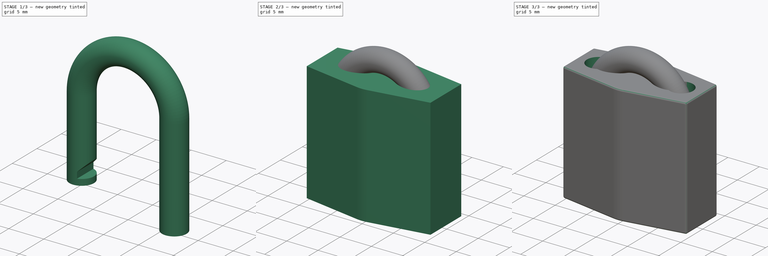
[diagram: build sequence overview — one tinted view per stage of 3, left to right]
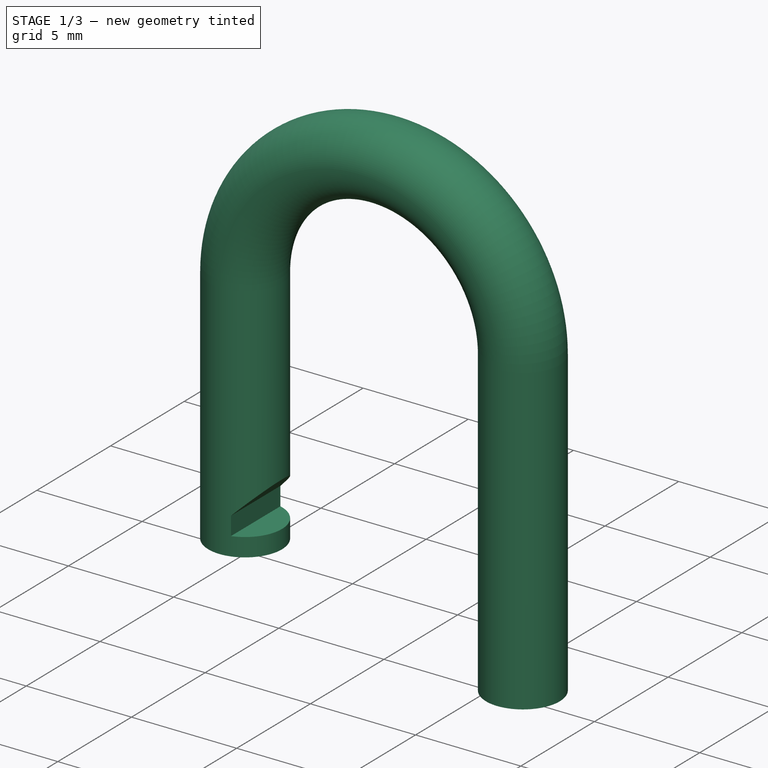
[diagram: stage 1 of 3 — iso view after this stage's code; geometry added in this stage tinted green]
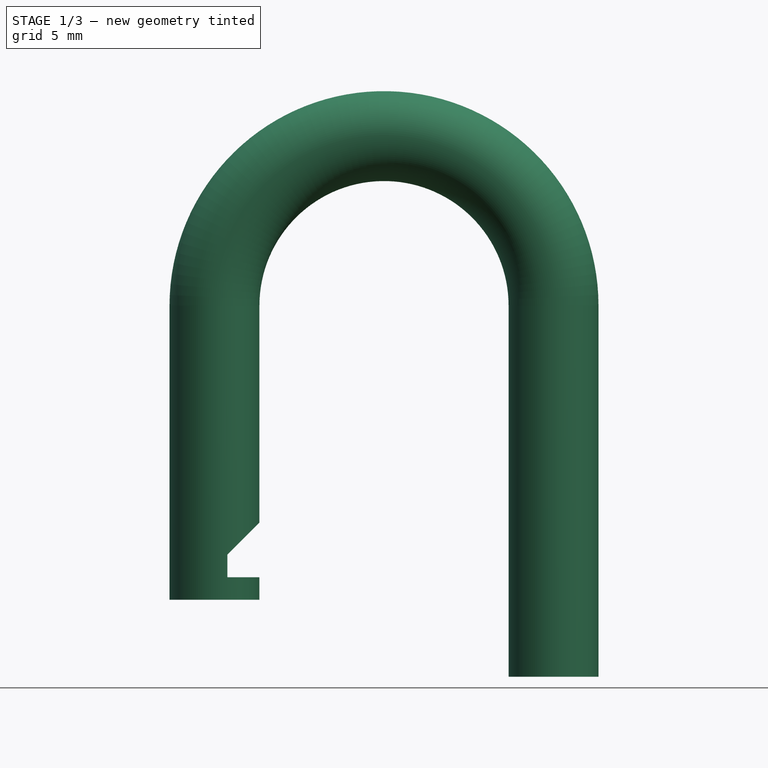
[diagram: stage 1 of 3 — front view after this stage's code; geometry added in this stage tinted green]
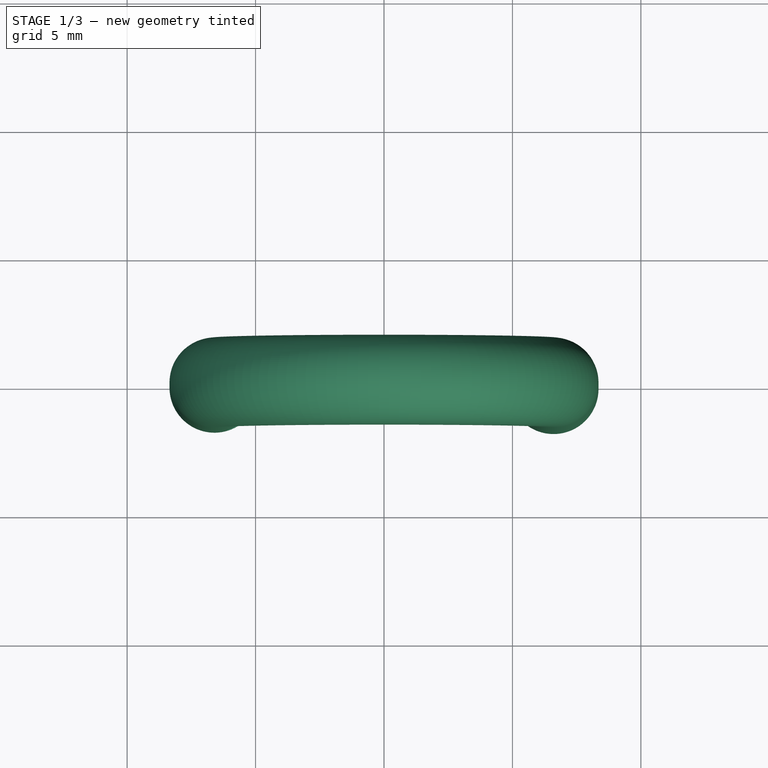
[diagram: stage 1 of 3 — top view after this stage's code; geometry added in this stage tinted green]
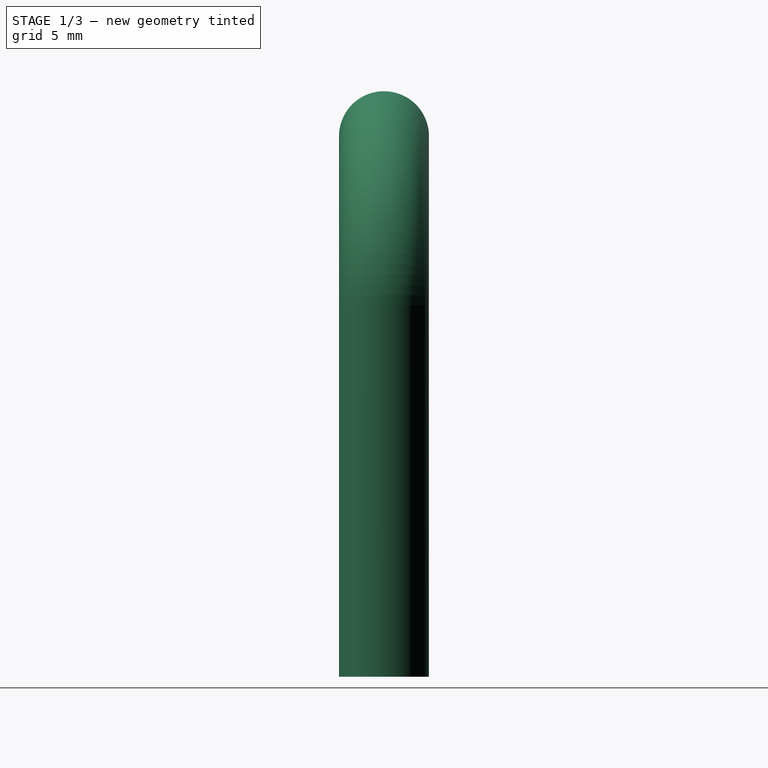
[diagram: stage 1 of 3 — right view after this stage's code; geometry added in this stage tinted green]
FCSTD DOCUMENT  (FreeCAD 0.19R24267 +99 (Git))
Label: _Padlock_new
License: Creative Commons Attribution
LicenseURL: http://creativecommons.org/licenses/by/4.0/
objects: Sketcher::SketchObject×5, PartDesign::Pocket×2, PartDesign::Body×2, App::FeaturePython×1, PartDesign::Pad×1, PartDesign::Fillet×1, PartDesign::AdditivePipe×1, PartDesign::Chamfer×1
note: 19 computed .brp shape members not serialized (recipe doc carries the construction recipe); baked Part::Feature solids carry a one-line shape summary decoded from their .brp

FEATURE [PartDesign::Body] Body
  Group = -> [Sketch,Pad,Sketch001,Pocket,Fillet]
  Origin = -> Origin
  Tip = -> Fillet
FEATURE [Sketcher::SketchObject] Sketch002
  FullyConstrained = true
  MapMode = 5
  Placement = pos=(0,0,0) rot=(1,0,0;1.5708rad)
  Support = -> [XZ_Plane001]
  expr: Constraints[13] = <<params>>.shakle_hight_open + <<params>>.shakle_diameter / 2
  expr: Constraints[5] = <<params>>.shakle_inner_width + <<params>>.shakle_diameter
  sketch-geometry (5):
    g0: LineSegment StartX=6.6 StartY=0 StartZ=0 EndX=6.6 EndY=14.45 EndZ=0
    g1: ArcOfCircle CenterX=0 CenterY=14.45 CenterZ=0 NormalX=0 NormalY=0 NormalZ=1 AngleXU=0 Radius=6.6 StartAngle=0 EndAngle=3.14159
    g2: LineSegment StartX=-6.6 StartY=14.45 StartZ=0 EndX=-6.6 EndY=3 EndZ=0
    g3: LineSegment StartX=6.6 StartY=2 StartZ=0 EndX=-6.6 EndY=2 EndZ=0
    g4: GeomPoint X=0 Y=21.05 Z=0
  constraints (15):
    c: Vertical(g0)
    c: Tangent(g0,g1) = -1.5708
    c: Tangent(g1,g2) = -1.5708
    c: Vertical(g2)
    c: PointOnObject(g1,g-2)
    c: DistanceX(g2,g0) = 13.2
    c: PointOnObject(g0,g-1)
    c: PointOnObject(g3,g0)
    c: Horizontal(g3)
    c: PointOnObject(g3,g2)
    c: DistanceY(g0,g3) = 2  'overlap'
    c: PointOnObject(g4,g1)
    c: PointOnObject(g4,g-2)
    c: DistanceY(g3,g4) = 19.05
    c: DistanceY(g3,g2) = 1
FEATURE [Sketcher::SketchObject] Sketch003
  ExternalGeometry = -> [Sketch002]
  FullyConstrained = true
  MapMode = 5
  Support = -> [XY_Plane001]
  expr: Constraints[1] = <<params>>.shakle_diameter
  sketch-geometry (1):
    g0: Circle CenterX=6.6 CenterY=0 CenterZ=0 NormalX=0 NormalY=0 NormalZ=1 AngleXU=0 Radius=1.75
  constraints (2):
    c: Coincident(g0,g-3)
    c: Diameter(g0) = 3.5
FEATURE [PartDesign::AdditivePipe] AdditivePipe
  AuxilleryCurvelinear = true
  AuxillerySpineTangent = false
  Binormal = (0,0,0)
  Mode = 0
  Profile = -> Sketch003
  Spine = -> Sketch002
  SpineTangent = false
  Transformation = 0
  Transition = 0
FEATURE [Sketcher::SketchObject] Sketch004
  ExternalGeometry = -> [Sketch002]
  FullyConstrained = true
  MapMode = 5
  Placement = pos=(0,0,0) rot=(1,0,0;1.5708rad)
  Support = -> [XZ_Plane001]
  expr: Constraints[11] = <<params>>.shakle_diameter
  expr: Constraints[10] = <<params>>.shakle_diameter / 4
  expr: Constraints[8] = <<params>>.shakle_diameter / 4
  expr: Constraints[7] = (<<params>>.shakle_inner_width + <<params>>.shakle_diameter) / 2 - <<params>>.shakle_diameter / 7
  sketch-geometry (4):
    g0: LineSegment StartX=-2.6 StartY=8.25 StartZ=0 EndX=-6.1 EndY=4.75 EndZ=0
    g1: LineSegment StartX=-6.1 StartY=4.75 StartZ=0 EndX=-6.1 EndY=3.875 EndZ=0
    g2: LineSegment StartX=-6.1 StartY=3.875 StartZ=0 EndX=-2.6 EndY=3.875 EndZ=0
    g3: LineSegment StartX=-2.6 StartY=3.875 StartZ=0 EndX=-2.6 EndY=8.25 EndZ=0
  constraints (12):
    c: Coincident(g0,g1)
    c: Vertical(g1)
    c: Coincident(g1,g2)
    c: Coincident(g2,g3)
    c: Vertical(g3)
    c: Coincident(g0,g3)
    c: Horizontal(g2)
    c: DistanceX(g1,g-1) = 6.1
    c: DistanceY(g1,g1) = 0.875
    c: Angle(g1,g0) = 2.35619
    c: DistanceY(g-3,g1) = 0.875
    c: DistanceX(g2,g2) = 3.5
FEATURE [PartDesign::Pocket] Pocket001
  BaseFeature = -> AdditivePipe
  Length = 5
  Length2 = 100
  Midplane = true
  Profile = -> Sketch004
  Type = 1
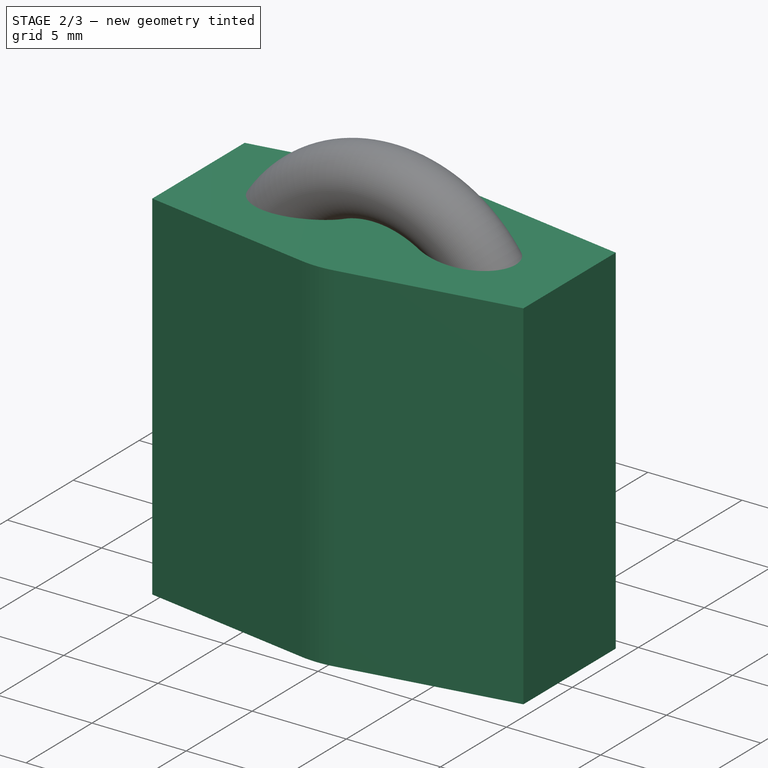
[diagram: stage 2 of 3 — iso view after this stage's code; geometry added in this stage tinted green]
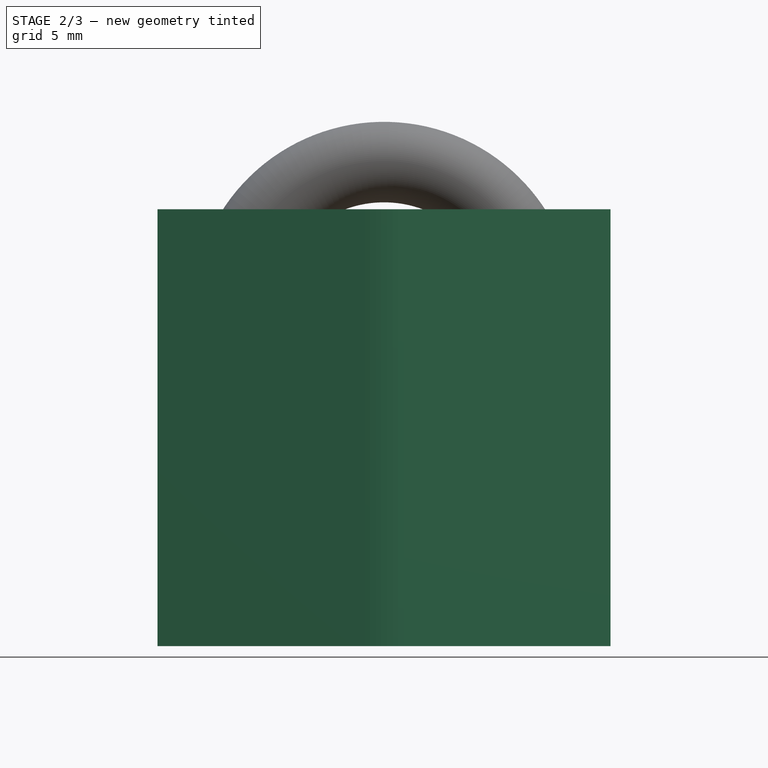
[diagram: stage 2 of 3 — front view after this stage's code; geometry added in this stage tinted green]
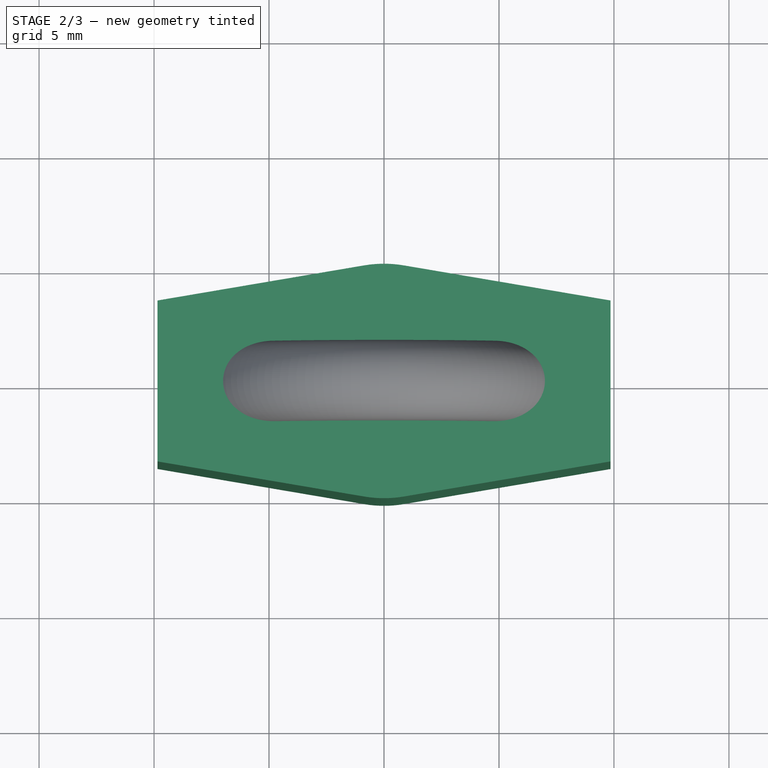
[diagram: stage 2 of 3 — top view after this stage's code; geometry added in this stage tinted green]
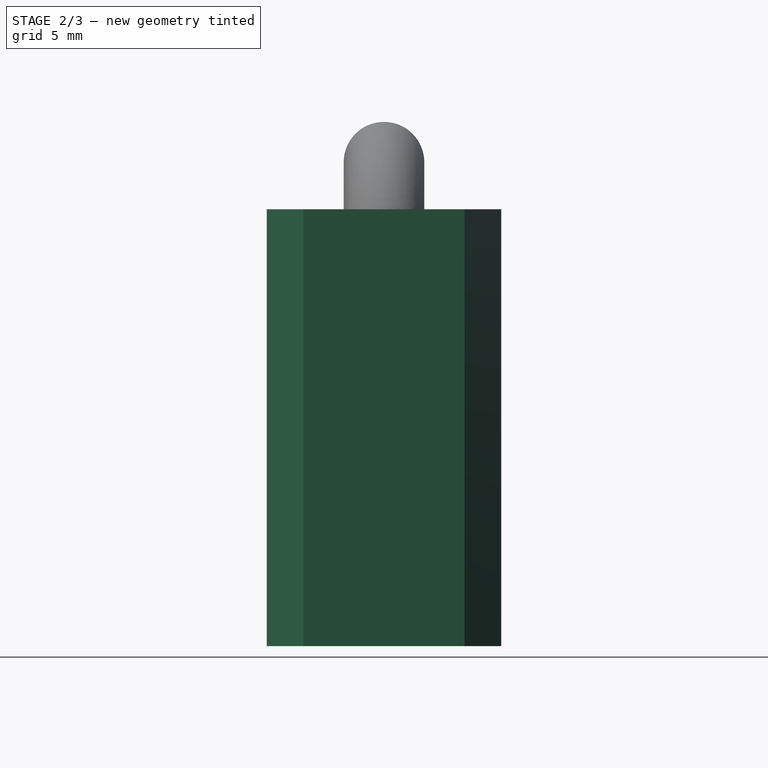
[diagram: stage 2 of 3 — right view after this stage's code; geometry added in this stage tinted green]
FEATURE [App::FeaturePython] PropertyBag  label="params"  # WARN: FeaturePython — macro-defined, semantics opaque (R4)
  CustomPropertyGroups = params | state
  body_depth_center = 10.2
  body_depth_outer = 7
  body_hight = 19
  body_width = 19.7
  shakle_diameter = 3.5
  shakle_hight_closed = 11.4
  shakle_hight_open = 17.3
  shakle_inner_width = 9.7
  state = 0
FEATURE [Sketcher::SketchObject] Sketch
  FullyConstrained = true
  MapMode = 5
  Support = -> [XY_Plane]
  expr: Constraints[20] = <<params>>.body_width
  expr: Constraints[15] = <<params>>.body_depth_outer
  expr: Constraints[11] = <<params>>.body_depth_center
  sketch-geometry (8):
    g0: ArcOfCircle CenterX=0 CenterY=0 CenterZ=0 NormalX=0 NormalY=0 NormalZ=1 AngleXU=0 Radius=5.1 StartAngle=1.40255 EndAngle=1.73904
    g1: ArcOfCircle CenterX=0 CenterY=0 CenterZ=0 NormalX=0 NormalY=0 NormalZ=1 AngleXU=0 Radius=5.1 StartAngle=4.54415 EndAngle=4.88063
    g2: LineSegment StartX=-9.85 StartY=3.5 StartZ=0 EndX=-9.85 EndY=-3.5 EndZ=0
    g3: LineSegment StartX=9.85 StartY=3.5 StartZ=0 EndX=9.85 EndY=-3.5 EndZ=0
    g4: LineSegment StartX=-9.85 StartY=3.5 StartZ=0 EndX=-0.854008 EndY=5.02799 EndZ=0
    g5: LineSegment StartX=0.854008 StartY=5.02799 StartZ=0 EndX=9.85 EndY=3.5 EndZ=0
    g6: LineSegment StartX=0.853998 StartY=-5.02799 StartZ=0 EndX=9.85 EndY=-3.5 EndZ=0
    g7: LineSegment StartX=-0.853998 StartY=-5.02799 StartZ=0 EndX=-9.85 EndY=-3.5 EndZ=0
  constraints (21):
    c: Coincident(g0,g-1)
    c: Coincident(g1,g0)
    c: Coincident(g4,g2)
    c: Coincident(g4,g0)
    c: Coincident(g5,g0)
    c: Coincident(g5,g3)
    c: Coincident(g6,g1)
    c: Coincident(g6,g3)
    c: Coincident(g7,g1)
    c: Coincident(g7,g2)
    c: Equal(g1,g0)
    c: Diameter(g0) = 10.2
    c: Symmetric(g2,g3,g-2)
    c: Symmetric(g2,g2,g-1)
    c: Symmetric(g3,g3,g-1)
    c: DistanceY(g2,g2) = 7
    c: Tangent(g4,g0)
    c: Tangent(g0,g5)
    c: Tangent(g6,g1)
    c: Tangent(g1,g7)
    c: DistanceX(g2,g3) = 19.7
FEATURE [PartDesign::Pad] Pad
  Direction = (1,1,1)
  Length = 19
  Length2 = 100
  Profile = -> Sketch
  Type = 0
  expr: Length = <<params>>.body_hight
FEATURE [PartDesign::Chamfer] Chamfer
  Angle = 45
  Base = -> Pocket001 [Edge7]
  BaseFeature = -> Pocket001
  ChamferType = 0
  FlipDirection = false
  Size = 0.35
  Size2 = 1
  SupportTransform = false
  expr: Size = <<params>>.shakle_diameter / 10
FEATURE [PartDesign::Body] Body001  label="Shakle"
  Group = -> [Sketch002,Sketch003,AdditivePipe,Sketch004,Pocket001,Chamfer]
  Origin = -> Origin001
  Placement = pos=(0,0,17) rot=(0,0,1;0rad)
  Tip = -> Chamfer
  expr: .Placement.Base.z = <<params>>.state == <<open>> ? <<params>>.body_hight - Sketch002.Constraints.overlap : <<params>>.body_hight - Sketch002.Constraints.overlap - (<<params>>.shakle_hight_open - <<params>>.shakle_hight_closed)
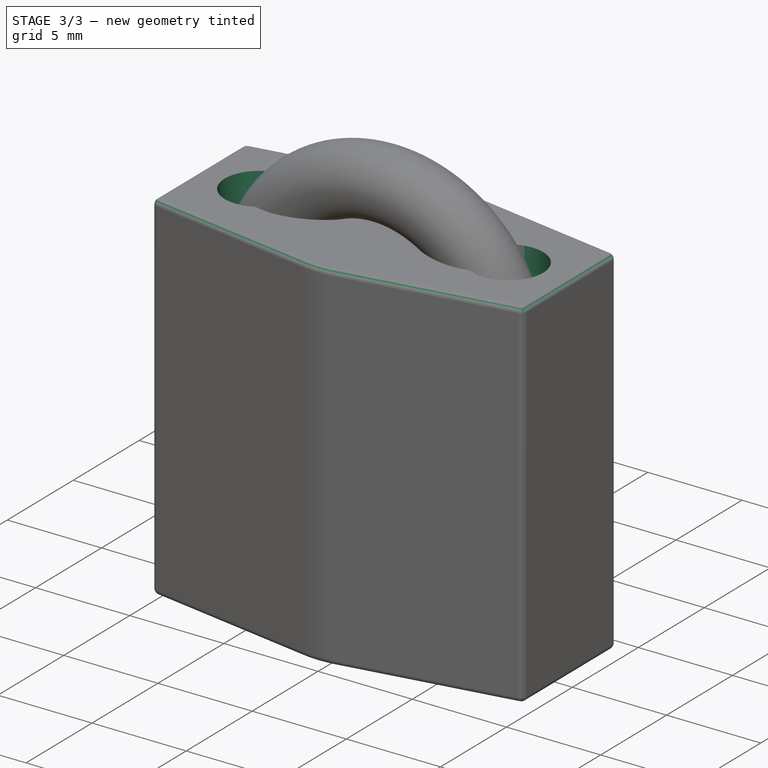
[diagram: stage 3 of 3 — iso view after this stage's code; geometry added in this stage tinted green]
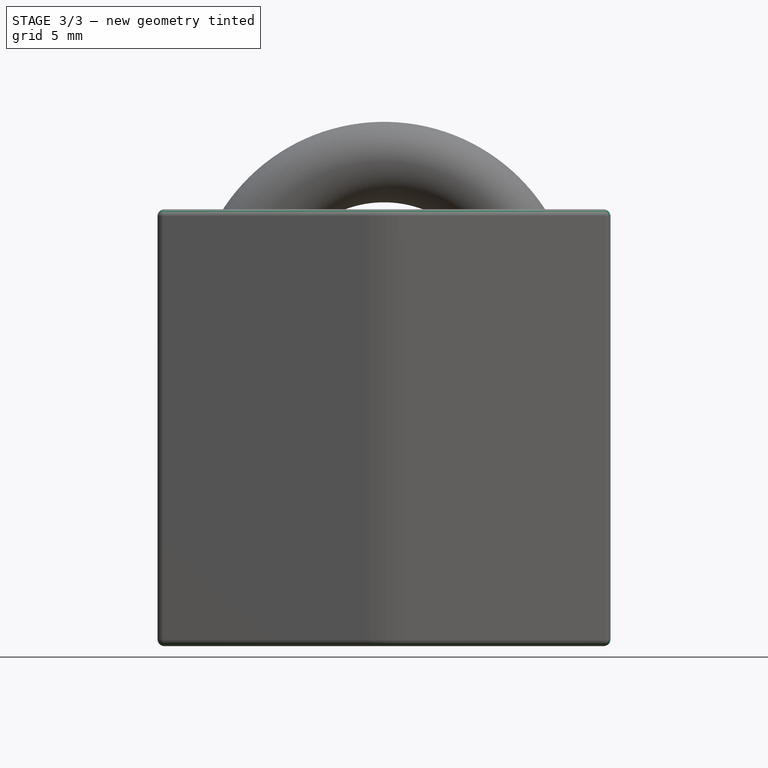
[diagram: stage 3 of 3 — front view after this stage's code; geometry added in this stage tinted green]
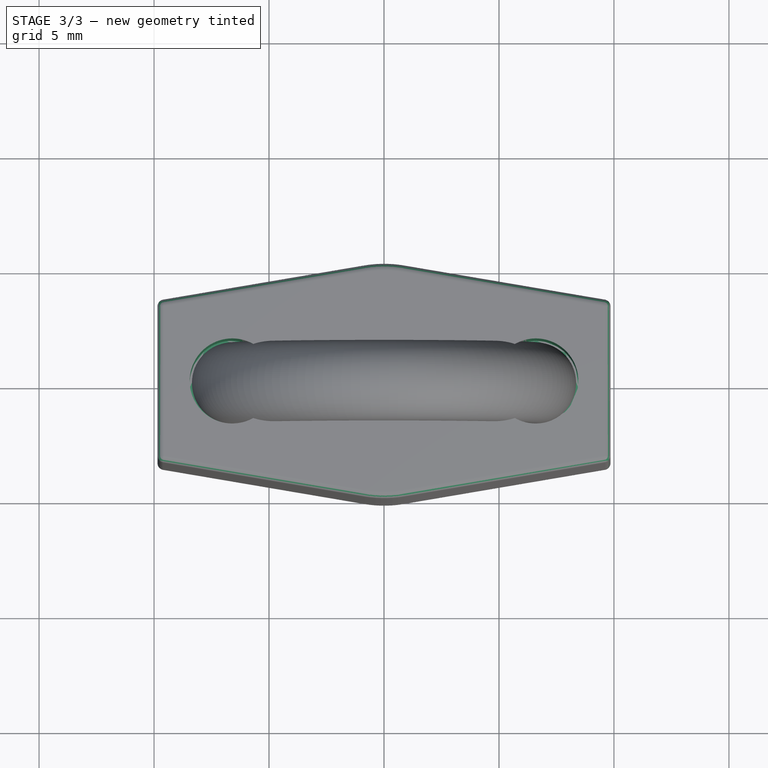
[diagram: stage 3 of 3 — top view after this stage's code; geometry added in this stage tinted green]
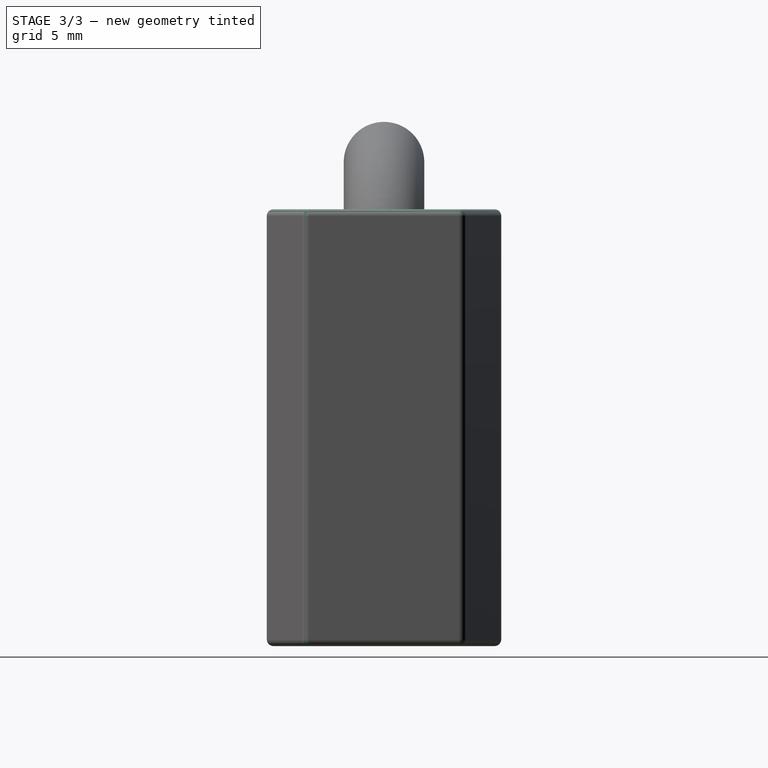
[diagram: stage 3 of 3 — right view after this stage's code; geometry added in this stage tinted green]
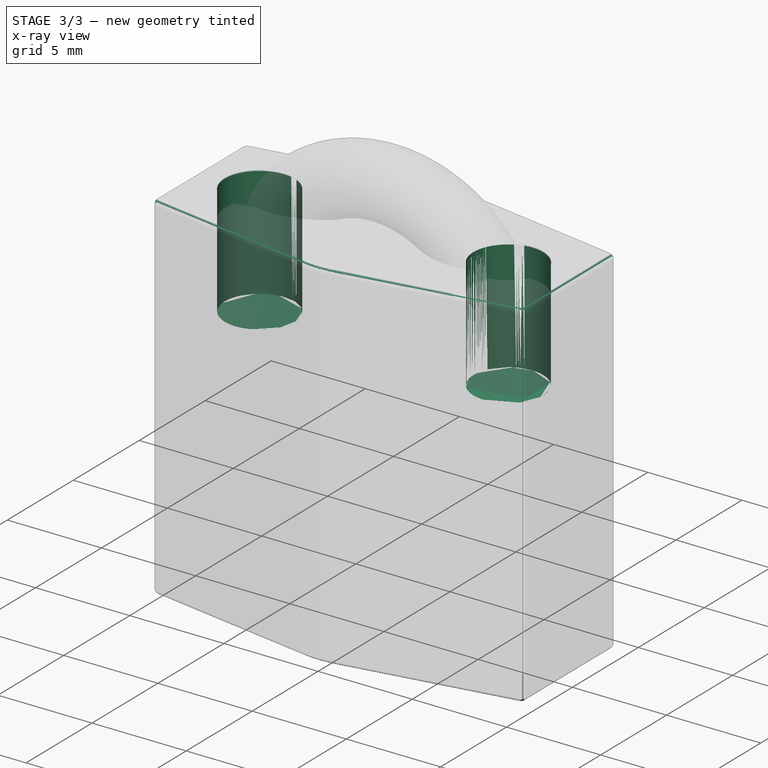
[diagram: stage 3 of 3 — x-ray composite at the iso view; earlier geometry ghosted, this stage's added geometry solid]
FEATURE [Sketcher::SketchObject] Sketch001
  AttachmentOffset = pos=(0,0,19) rot=(0,0,1;0rad)
  FullyConstrained = true
  MapMode = 5
  Placement = pos=(0,0,19) rot=(0,0,1;0rad)
  Support = -> [XY_Plane]
  expr: Constraints[3] = <<params>>.shakle_inner_width + <<params>>.shakle_diameter
  expr: Constraints[1] = <<params>>.shakle_diameter + 0.2mm
  expr: .AttachmentOffset.Base.z = <<params>>.body_hight
  sketch-geometry (2):
    g0: Circle CenterX=-6.6 CenterY=0 CenterZ=0 NormalX=0 NormalY=0 NormalZ=1 AngleXU=0 Radius=1.85
    g1: Circle CenterX=6.6 CenterY=0 CenterZ=0 NormalX=0 NormalY=0 NormalZ=1 AngleXU=0 Radius=1.85
  constraints (5):
    c: Symmetric(g0,g1,g-2)
    c: Diameter(g0) = 3.7
    c: Equal(g0,g1)
    c: DistanceX(g0,g1) = 13.2
    c: PointOnObject(g1,g-1)
FEATURE [PartDesign::Pocket] Pocket
  BaseFeature = -> Pad
  Length = 5.9
  Length2 = 100
  Profile = -> Sketch001
  Type = 0
  expr: Length = <<params>>.shakle_hight_open - <<params>>.shakle_hight_closed
FEATURE [PartDesign::Fillet] Fillet
  Base = -> Pocket [Edge24,Edge23,Edge5,Edge8,Edge10,Edge4,Edge7,Edge16,Edge18,Edge20,Edge19,Edge9,Edge3,Edge6,Edge11,Edge12,Edge14,Edge13,Edge15,Edge17]
  BaseFeature = -> Pocket
  Radius = 0.3
  SupportTransform = false
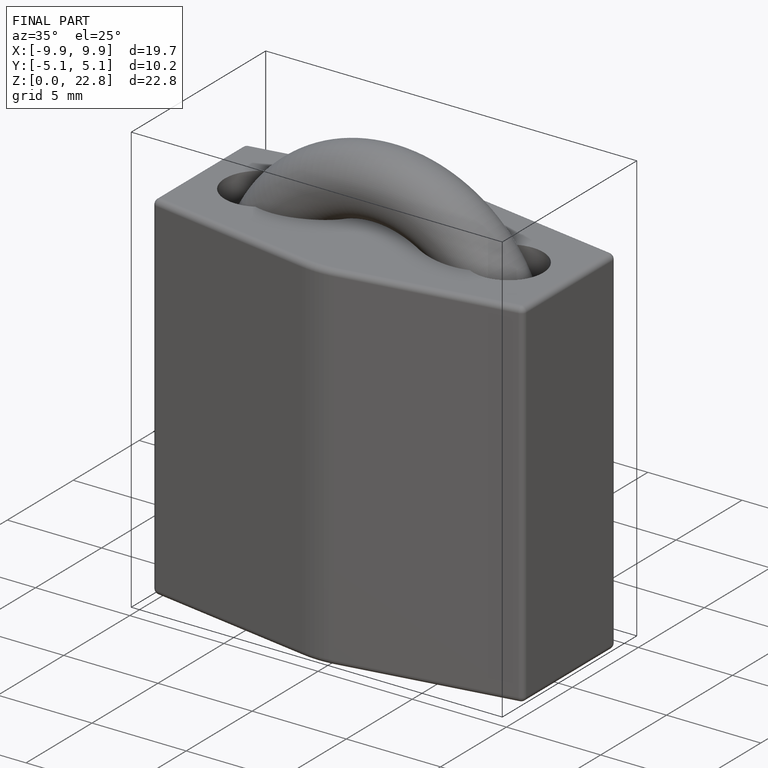
[diagram: finished part — iso view with bounding-box wireframe]
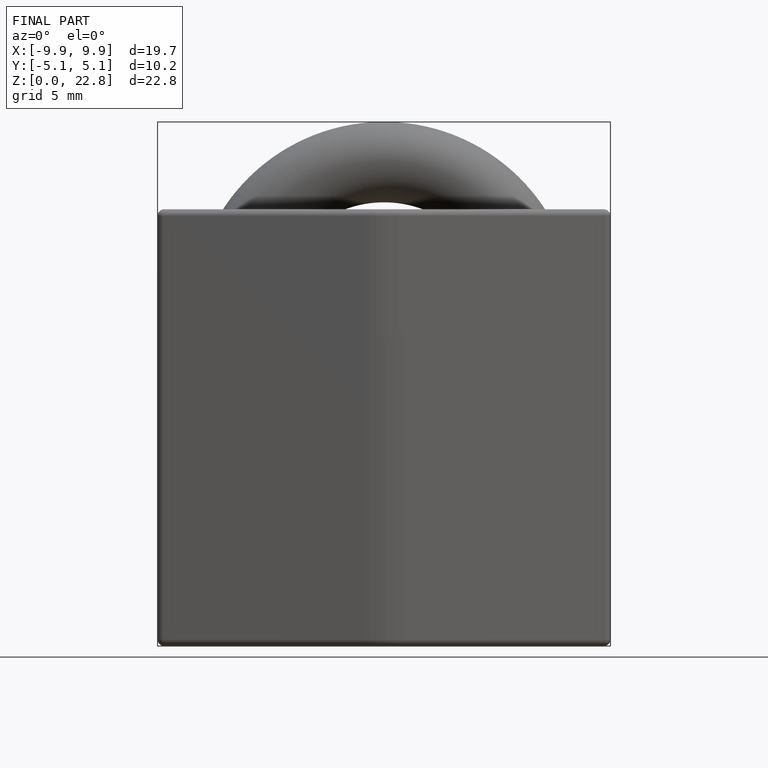
[diagram: finished part — front view with bounding-box wireframe]
